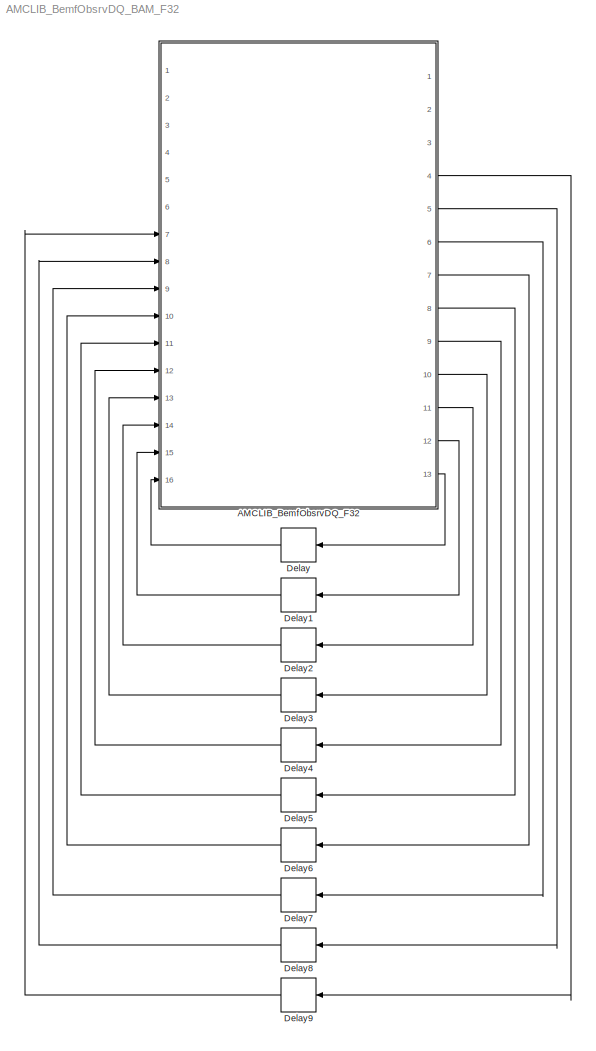
MODEL AMCLIB_BemfObsrvDQ_BAM_F32
KIND model
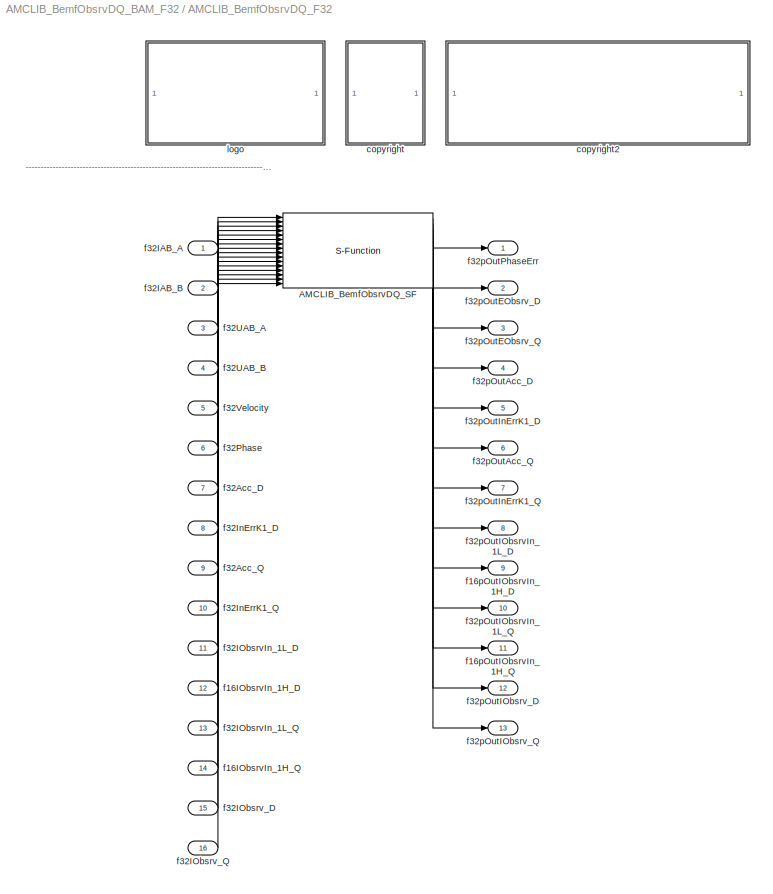
BLOCK [SubSystem] AMCLIB_BemfObsrvDQ_F32
  Ports = [16, 13]
  RequestExecContextInheritance = off
  SID = 1
BLOCK [S-Function] AMCLIB_BemfObsrvDQ_F32/AMCLIB_BemfObsrvDQ_SF
  EnableBusSupport = off
  FunctionName = AMCLIB_BemfObsrvDQ_SF_F32
  Parameters = f32IGain,f32UGain,f32WIGain,f32EGain,s16Shift,f32CC1sc_D,f32CC1sc_Q,f32CC2sc_D,f32CC2sc_Q,f32UpperLimit_D,f32UpperLimit_Q,f32LowerLimit_D,f32LowerLimit_Q,u16NShift
  Ports = [16, 13]
  SID = 4
BLOCK [SubSystem] AMCLIB_BemfObsrvDQ_F32/<copyright redacted>
  Ports = []
  RequestExecContextInheritance = off
  SID = 38
BLOCK [SubSystem] AMCLIB_BemfObsrvDQ_F32/copyright2
  Ports = []
  RequestExecContextInheritance = off
  SID = 41
BLOCK [Inport] AMCLIB_BemfObsrvDQ_F32/f16IObsrvIn_1H_D
  IconDisplay = Port number
  Port = 12
  SID = 16
BLOCK [Inport] AMCLIB_BemfObsrvDQ_F32/f16IObsrvIn_1H_Q
  IconDisplay = Port number
  Port = 14
  SID = 18
BLOCK [Outport] AMCLIB_BemfObsrvDQ_F32/f16pOutIObsrvIn_1H_D
  IconDisplay = Port number
  Port = 9
  SID = 29
BLOCK [Outport] AMCLIB_BemfObsrvDQ_F32/f16pOutIObsrvIn_1H_Q
  IconDisplay = Port number
  Port = 11
  SID = 31
BLOCK [Inport] AMCLIB_BemfObsrvDQ_F32/f32Acc_D
  IconDisplay = Port number
  Port = 7
  SID = 11
BLOCK [Inport] AMCLIB_BemfObsrvDQ_F32/f32Acc_Q
  IconDisplay = Port number
  Port = 9
  SID = 13
BLOCK [Inport] AMCLIB_BemfObsrvDQ_F32/f32IAB_A
  IconDisplay = Port number
  SID = 5
BLOCK [Inport] AMCLIB_BemfObsrvDQ_F32/f32IAB_B
  IconDisplay = Port number
  Port = 2
  SID = 6
BLOCK [Inport] AMCLIB_BemfObsrvDQ_F32/f32IObsrvIn_1L_D
  IconDisplay = Port number
  Port = 11
  SID = 15
BLOCK [Inport] AMCLIB_BemfObsrvDQ_F32/f32IObsrvIn_1L_Q
  IconDisplay = Port number
  Port = 13
  SID = 17
BLOCK [Inport] AMCLIB_BemfObsrvDQ_F32/f32IObsrv_D
  IconDisplay = Port number
  Port = 15
  SID = 19
BLOCK [Inport] AMCLIB_BemfObsrvDQ_F32/f32IObsrv_Q
  IconDisplay = Port number
  Port = 16
  SID = 20
BLOCK [Inport] AMCLIB_BemfObsrvDQ_F32/f32InErrK1_D
  IconDisplay = Port number
  Port = 8
  SID = 12
BLOCK [Inport] AMCLIB_BemfObsrvDQ_F32/f32InErrK1_Q
  IconDisplay = Port number
  Port = 10
  SID = 14
BLOCK [Inport] AMCLIB_BemfObsrvDQ_F32/f32Phase
  IconDisplay = Port number
  Port = 6
  SID = 10
BLOCK [Inport] AMCLIB_BemfObsrvDQ_F32/f32UAB_A
  IconDisplay = Port number
  Port = 3
  SID = 7
BLOCK [Inport] AMCLIB_BemfObsrvDQ_F32/f32UAB_B
  IconDisplay = Port number
  Port = 4
  SID = 8
BLOCK [Inport] AMCLIB_BemfObsrvDQ_F32/f32Velocity
  IconDisplay = Port number
  Port = 5
  SID = 9
BLOCK [Outport] AMCLIB_BemfObsrvDQ_F32/f32pOutAcc_D
  IconDisplay = Port number
  Port = 4
  SID = 24
BLOCK [Outport] AMCLIB_BemfObsrvDQ_F32/f32pOutAcc_Q
  IconDisplay = Port number
  Port = 6
  SID = 26
BLOCK [Outport] AMCLIB_BemfObsrvDQ_F32/f32pOutEObsrv_D
  IconDisplay = Port number
  Port = 2
  SID = 22
BLOCK [Outport] AMCLIB_BemfObsrvDQ_F32/f32pOutEObsrv_Q
  IconDisplay = Port number
  Port = 3
  SID = 23
BLOCK [Outport] AMCLIB_BemfObsrvDQ_F32/f32pOutIObsrvIn_1L_D
  IconDisplay = Port number
  Port = 8
  SID = 28
BLOCK [Outport] AMCLIB_BemfObsrvDQ_F32/f32pOutIObsrvIn_1L_Q
  IconDisplay = Port number
  Port = 10
  SID = 30
BLOCK [Outport] AMCLIB_BemfObsrvDQ_F32/f32pOutIObsrv_D
  IconDisplay = Port number
  Port = 12
  SID = 32
BLOCK [Outport] AMCLIB_BemfObsrvDQ_F32/f32pOutIObsrv_Q
  IconDisplay = Port number
  Port = 13
  SID = 33
BLOCK [Outport] AMCLIB_BemfObsrvDQ_F32/f32pOutInErrK1_D
  IconDisplay = Port number
  Port = 5
  SID = 25
BLOCK [Outport] AMCLIB_BemfObsrvDQ_F32/f32pOutInErrK1_Q
  IconDisplay = Port number
  Port = 7
  SID = 27
BLOCK [Outport] AMCLIB_BemfObsrvDQ_F32/f32pOutPhaseErr
  IconDisplay = Port number
  SID = 21
BLOCK [SubSystem] AMCLIB_BemfObsrvDQ_F32/logo
  Ports = []
  RequestExecContextInheritance = off
  SID = 34
BLOCK [Delay] Delay
  DelayLength = 1
  InitialCondition = 0
  InputPortMap = u0
  Ports = [1, 1]
  SID = 44
BLOCK [Delay] Delay1
  DelayLength = 1
  InitialCondition = 0
  InputPortMap = u0
  Ports = [1, 1]
  SID = 45
BLOCK [Delay] Delay2
  DelayLength = 1
  InitialCondition = 0
  InputPortMap = u0
  Ports = [1, 1]
  SID = 46
BLOCK [Delay] Delay3
  DelayLength = 1
  InitialCondition = 0
  InputPortMap = u0
  Ports = [1, 1]
  SID = 47
BLOCK [Delay] Delay4
  DelayLength = 1
  InitialCondition = 0
  InputPortMap = u0
  Ports = [1, 1]
  SID = 48
BLOCK [Delay] Delay5
  DelayLength = 1
  InitialCondition = 0
  InputPortMap = u0
  Ports = [1, 1]
  SID = 49
BLOCK [Delay] Delay6
  DelayLength = 1
  InitialCondition = 0
  InputPortMap = u0
  Ports = [1, 1]
  SID = 50
BLOCK [Delay] Delay7
  DelayLength = 1
  InitialCondition = 0
  InputPortMap = u0
  Ports = [1, 1]
  SID = 51
BLOCK [Delay] Delay8
  DelayLength = 1
  InitialCondition = 0
  InputPortMap = u0
  Ports = [1, 1]
  SID = 52
BLOCK [Delay] Delay9
  DelayLength = 1
  InitialCondition = 0
  InputPortMap = u0
  Ports = [1, 1]
  SID = 53
ANNOTATION AMCLIB_BemfObsrvDQ_F32: ---------------------------------------------------------------------------------------------------------------------------------------------------------------------------------------------------
LINE AMCLIB_BemfObsrvDQ_F32/AMCLIB_BemfObsrvDQ_SF:1 -> AMCLIB_BemfObsrvDQ_F32/f32pOutPhaseErr:1
LINE AMCLIB_BemfObsrvDQ_F32/AMCLIB_BemfObsrvDQ_SF:10 -> AMCLIB_BemfObsrvDQ_F32/f32pOutIObsrvIn_1L_Q:1
LINE AMCLIB_BemfObsrvDQ_F32/AMCLIB_BemfObsrvDQ_SF:11 -> AMCLIB_BemfObsrvDQ_F32/f16pOutIObsrvIn_1H_Q:1
LINE AMCLIB_BemfObsrvDQ_F32/AMCLIB_BemfObsrvDQ_SF:12 -> AMCLIB_BemfObsrvDQ_F32/f32pOutIObsrv_D:1
LINE AMCLIB_BemfObsrvDQ_F32/AMCLIB_BemfObsrvDQ_SF:13 -> AMCLIB_BemfObsrvDQ_F32/f32pOutIObsrv_Q:1
LINE AMCLIB_BemfObsrvDQ_F32/AMCLIB_BemfObsrvDQ_SF:2 -> AMCLIB_BemfObsrvDQ_F32/f32pOutEObsrv_D:1
LINE AMCLIB_BemfObsrvDQ_F32/AMCLIB_BemfObsrvDQ_SF:3 -> AMCLIB_BemfObsrvDQ_F32/f32pOutEObsrv_Q:1
LINE AMCLIB_BemfObsrvDQ_F32/AMCLIB_BemfObsrvDQ_SF:4 -> AMCLIB_BemfObsrvDQ_F32/f32pOutAcc_D:1
LINE AMCLIB_BemfObsrvDQ_F32/AMCLIB_BemfObsrvDQ_SF:5 -> AMCLIB_BemfObsrvDQ_F32/f32pOutInErrK1_D:1
LINE AMCLIB_BemfObsrvDQ_F32/AMCLIB_BemfObsrvDQ_SF:6 -> AMCLIB_BemfObsrvDQ_F32/f32pOutAcc_Q:1
LINE AMCLIB_BemfObsrvDQ_F32/AMCLIB_BemfObsrvDQ_SF:7 -> AMCLIB_BemfObsrvDQ_F32/f32pOutInErrK1_Q:1
LINE AMCLIB_BemfObsrvDQ_F32/AMCLIB_BemfObsrvDQ_SF:8 -> AMCLIB_BemfObsrvDQ_F32/f32pOutIObsrvIn_1L_D:1
LINE AMCLIB_BemfObsrvDQ_F32/AMCLIB_BemfObsrvDQ_SF:9 -> AMCLIB_BemfObsrvDQ_F32/f16pOutIObsrvIn_1H_D:1
LINE AMCLIB_BemfObsrvDQ_F32/f16IObsrvIn_1H_D:1 -> AMCLIB_BemfObsrvDQ_F32/AMCLIB_BemfObsrvDQ_SF:12
LINE AMCLIB_BemfObsrvDQ_F32/f16IObsrvIn_1H_Q:1 -> AMCLIB_BemfObsrvDQ_F32/AMCLIB_BemfObsrvDQ_SF:14
LINE AMCLIB_BemfObsrvDQ_F32/f32Acc_D:1 -> AMCLIB_BemfObsrvDQ_F32/AMCLIB_BemfObsrvDQ_SF:7
LINE AMCLIB_BemfObsrvDQ_F32/f32Acc_Q:1 -> AMCLIB_BemfObsrvDQ_F32/AMCLIB_BemfObsrvDQ_SF:9
LINE AMCLIB_BemfObsrvDQ_F32/f32IAB_A:1 -> AMCLIB_BemfObsrvDQ_F32/AMCLIB_BemfObsrvDQ_SF:1
LINE AMCLIB_BemfObsrvDQ_F32/f32IAB_B:1 -> AMCLIB_BemfObsrvDQ_F32/AMCLIB_BemfObsrvDQ_SF:2
LINE AMCLIB_BemfObsrvDQ_F32/f32IObsrvIn_1L_D:1 -> AMCLIB_BemfObsrvDQ_F32/AMCLIB_BemfObsrvDQ_SF:11
LINE AMCLIB_BemfObsrvDQ_F32/f32IObsrvIn_1L_Q:1 -> AMCLIB_BemfObsrvDQ_F32/AMCLIB_BemfObsrvDQ_SF:13
LINE AMCLIB_BemfObsrvDQ_F32/f32IObsrv_D:1 -> AMCLIB_BemfObsrvDQ_F32/AMCLIB_BemfObsrvDQ_SF:15
LINE AMCLIB_BemfObsrvDQ_F32/f32IObsrv_Q:1 -> AMCLIB_BemfObsrvDQ_F32/AMCLIB_BemfObsrvDQ_SF:16
LINE AMCLIB_BemfObsrvDQ_F32/f32InErrK1_D:1 -> AMCLIB_BemfObsrvDQ_F32/AMCLIB_BemfObsrvDQ_SF:8
LINE AMCLIB_BemfObsrvDQ_F32/f32InErrK1_Q:1 -> AMCLIB_BemfObsrvDQ_F32/AMCLIB_BemfObsrvDQ_SF:10
LINE AMCLIB_BemfObsrvDQ_F32/f32Phase:1 -> AMCLIB_BemfObsrvDQ_F32/AMCLIB_BemfObsrvDQ_SF:6
LINE AMCLIB_BemfObsrvDQ_F32/f32UAB_A:1 -> AMCLIB_BemfObsrvDQ_F32/AMCLIB_BemfObsrvDQ_SF:3
LINE AMCLIB_BemfObsrvDQ_F32/f32UAB_B:1 -> AMCLIB_BemfObsrvDQ_F32/AMCLIB_BemfObsrvDQ_SF:4
LINE AMCLIB_BemfObsrvDQ_F32/f32Velocity:1 -> AMCLIB_BemfObsrvDQ_F32/AMCLIB_BemfObsrvDQ_SF:5
LINE AMCLIB_BemfObsrvDQ_F32:10 -> Delay3:1
LINE AMCLIB_BemfObsrvDQ_F32:11 -> Delay2:1
LINE AMCLIB_BemfObsrvDQ_F32:12 -> Delay1:1
LINE AMCLIB_BemfObsrvDQ_F32:13 -> Delay:1
LINE AMCLIB_BemfObsrvDQ_F32:4 -> Delay9:1
LINE AMCLIB_BemfObsrvDQ_F32:5 -> Delay8:1
LINE AMCLIB_BemfObsrvDQ_F32:6 -> Delay7:1
LINE AMCLIB_BemfObsrvDQ_F32:7 -> Delay6:1
LINE AMCLIB_BemfObsrvDQ_F32:8 -> Delay5:1
LINE AMCLIB_BemfObsrvDQ_F32:9 -> Delay4:1
LINE Delay1:1 -> AMCLIB_BemfObsrvDQ_F32:15
LINE Delay2:1 -> AMCLIB_BemfObsrvDQ_F32:14
LINE Delay3:1 -> AMCLIB_BemfObsrvDQ_F32:13
LINE Delay4:1 -> AMCLIB_BemfObsrvDQ_F32:12
LINE Delay5:1 -> AMCLIB_BemfObsrvDQ_F32:11
LINE Delay6:1 -> AMCLIB_BemfObsrvDQ_F32:10
LINE Delay7:1 -> AMCLIB_BemfObsrvDQ_F32:9
LINE Delay8:1 -> AMCLIB_BemfObsrvDQ_F32:8
LINE Delay9:1 -> AMCLIB_BemfObsrvDQ_F32:7
LINE Delay:1 -> AMCLIB_BemfObsrvDQ_F32:16
